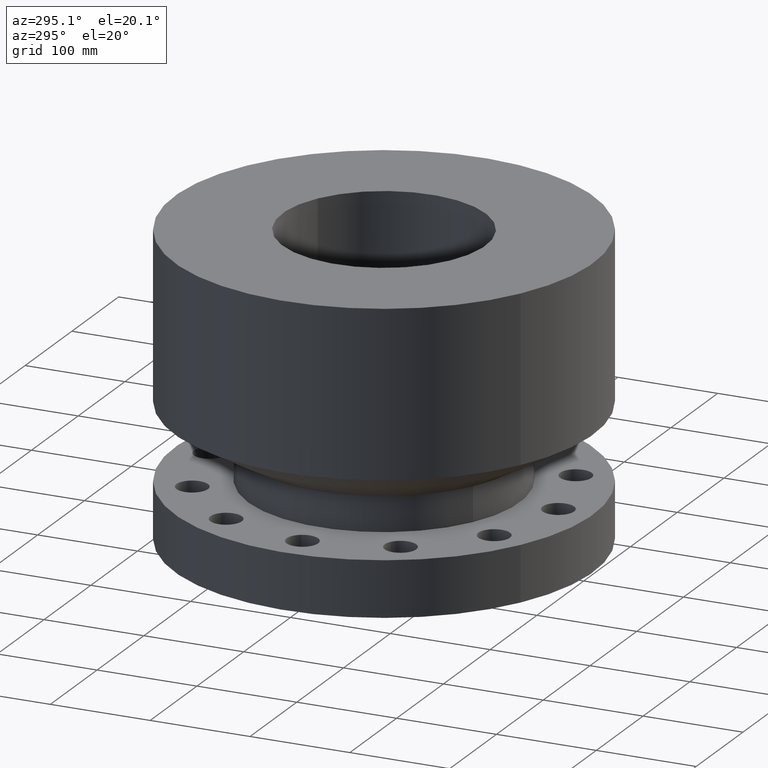
[diagram: clean part render]
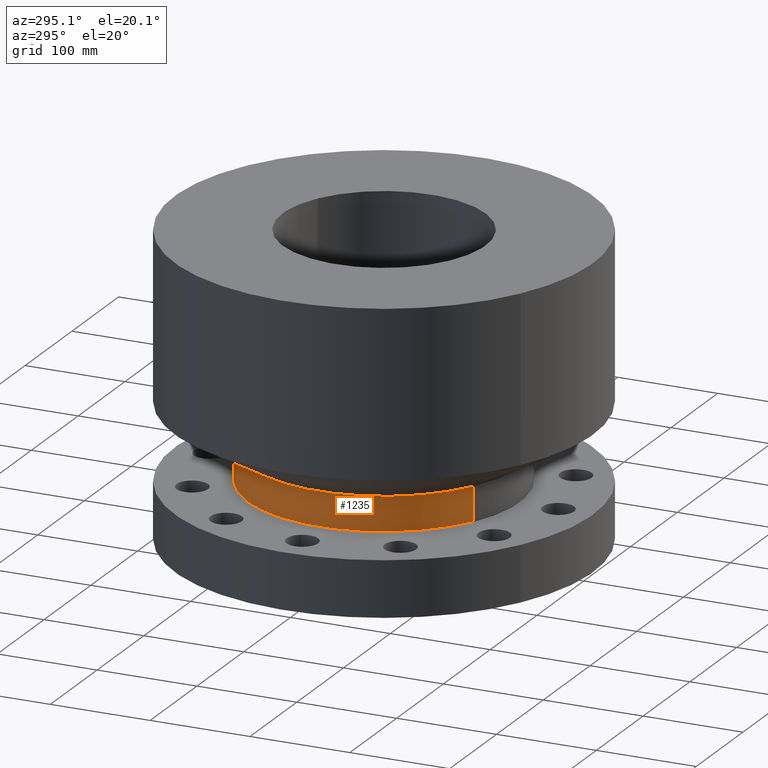
[diagram: same view with one face highlighted and labeled with its STEP entity id]
A machine part, auxiliary view. The second image highlights one B-rep face of the part: STEP entity #1235.
In plain terms, the highlighted cylindrical surface (partial cylindrical patch) has radius 136.525 mm, axis along (0, 0, -1).
Its self-contained STEP definition (entity closure, byte-faithful):
#1004=AXIS2_PLACEMENT_3D('Circle Axis2P3D',#1002,#1003,$) ;
#1196=AXIS2_PLACEMENT_3D('Cylinder Axis2P3D',#1193,#1194,#1195) ;
#1226=AXIS2_PLACEMENT_3D('Circle Axis2P3D',#1224,#1225,$) ;
#980=CARTESIAN_POINT('Vertex',(2.57691227001,4.71700627018,2.23098076212)) ;
#987=CARTESIAN_POINT('Vertex',(-2.57691227001,-4.71700627018,2.23098076212)) ;
#1002=CARTESIAN_POINT('Axis2P3D Location',(0.,0.,2.23098076212)) ;
#1193=CARTESIAN_POINT('Axis2P3D Location',(0.,0.,5.75000000002)) ;
#1198=CARTESIAN_POINT('Line Origine',(2.57691227001,4.71700627018,2.90049038107)) ;
#1202=CARTESIAN_POINT('Vertex',(2.57691227001,4.71700627018,3.57000000001)) ;
#1209=CARTESIAN_POINT('Vertex',(-2.57691227001,-4.71700627018,3.57000000001)) ;
#1212=CARTESIAN_POINT('Line Origine',(-2.57691227001,-4.71700627018,2.90049038107)) ;
#1224=CARTESIAN_POINT('Axis2P3D Location',(0.,0.,3.57000000001)) ;
#1003=DIRECTION('Axis2P3D Direction',(-0.,0.,0.0393700787402)) ;
#1194=DIRECTION('Axis2P3D Direction',(0.,0.,-0.0393700787402)) ;
#1195=DIRECTION('Axis2P3D XDirection',(-0.0188750212049,-0.0345504945626,0.)) ;
#1199=DIRECTION('Vector Direction',(0.,0.,-0.0393700787402)) ;
#1213=DIRECTION('Vector Direction',(0.,0.,-0.0393700787402)) ;
#1225=DIRECTION('Axis2P3D Direction',(0.,0.,-0.0393700787402)) ;
#1200=VECTOR('Line Direction',#1199,0.0393700787402) ;
#1214=VECTOR('Line Direction',#1213,0.0393700787402) ;
#1230=ORIENTED_EDGE('',*,*,#1006,.F.) ;
#1231=ORIENTED_EDGE('',*,*,#1216,.T.) ;
#1232=ORIENTED_EDGE('',*,*,#1228,.T.) ;
#1233=ORIENTED_EDGE('',*,*,#1204,.F.) ;
#1235=ADVANCED_FACE('PartBody',(#1234),#1197,.T.) ;
#1005=CIRCLE('generated circle',#1004,5.37500000002) ;
#1227=CIRCLE('generated circle',#1226,5.37500000002) ;
#1197=CYLINDRICAL_SURFACE('generated cylinder',#1196,5.37500000002) ;
#1006=EDGE_CURVE('',#988,#981,#1005,.F.) ;
#1204=EDGE_CURVE('',#981,#1203,#1201,.F.) ;
#1216=EDGE_CURVE('',#988,#1210,#1215,.F.) ;
#1228=EDGE_CURVE('',#1210,#1203,#1227,.T.) ;
#1229=EDGE_LOOP('',(#1230,#1231,#1232,#1233)) ;
#1234=FACE_OUTER_BOUND('',#1229,.T.) ;
#1201=LINE('Line',#1198,#1200) ;
#1215=LINE('Line',#1212,#1214) ;
#981=VERTEX_POINT('',#980) ;
#988=VERTEX_POINT('',#987) ;
#1203=VERTEX_POINT('',#1202) ;
#1210=VERTEX_POINT('',#1209) ;